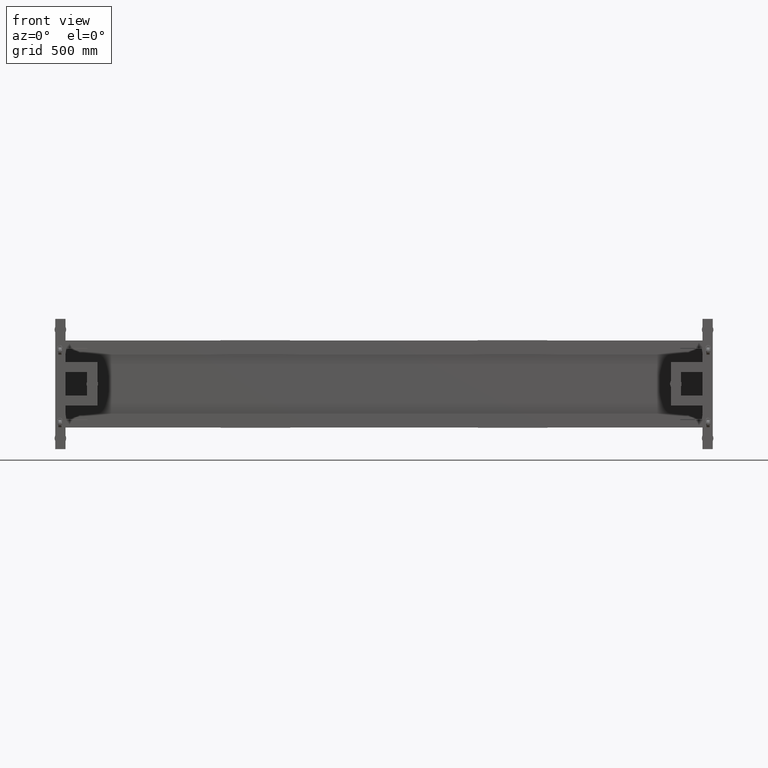
[diagram: clean part render]
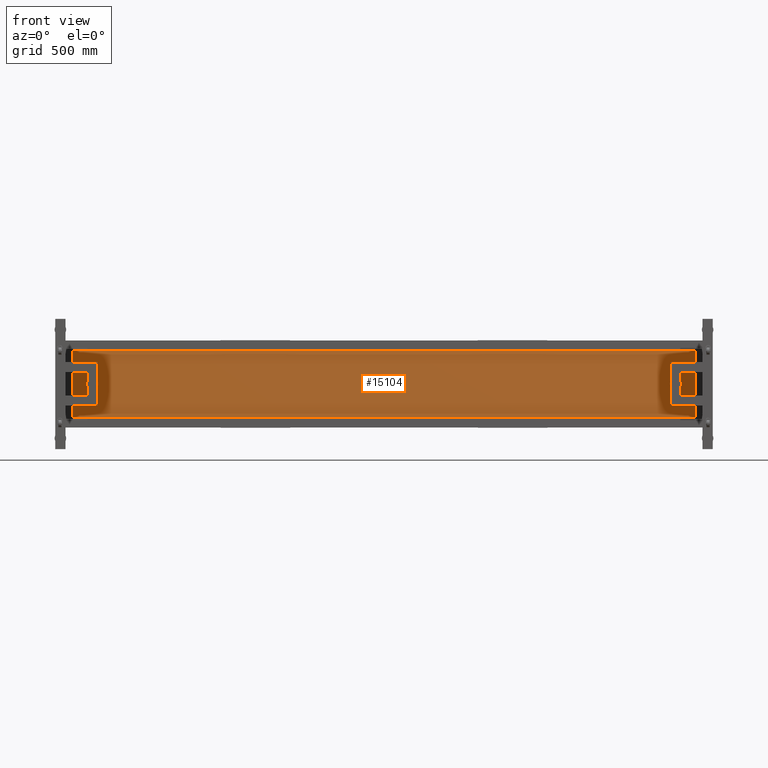
[diagram: same view with one face highlighted and labeled with its STEP entity id]
A machine part, front view. The second image highlights one B-rep face of the part: STEP entity #15104.
In plain terms, the highlighted planar face has unit normal (0, 1, -0).
Its self-contained STEP definition (entity closure, byte-faithful):
#83 = CARTESIAN_POINT ( 'NONE',  ( 3080.317512562816319, 555.4410804020131991, -228.4899999999998954 ) ) ;
#409 = CARTESIAN_POINT ( 'NONE',  ( 3080.317512562816319, 555.4410804020136538, 228.4900000000081093 ) ) ;
#1901 = CARTESIAN_POINT ( 'NONE',  ( -16.66248743718434611, 555.4410804020136538, 228.4900000000001228 ) ) ;
#4736 = CARTESIAN_POINT ( 'NONE',  ( 2380.317512562815409, 555.4410804020129717, -228.4899999999998954 ) ) ;
#6479 = EDGE_CURVE ( 'NONE', #12515, #47104, #36032, .T. ) ;
#7032 = LINE ( 'NONE', #83, #51543 ) ;
#12515 = VERTEX_POINT ( 'NONE', #77593 ) ;
#13775 = DIRECTION ( 'NONE',  ( 1.000000000000000000, -1.092267369640097868E-16, 0.000000000000000000 ) ) ;
#15104 = ADVANCED_FACE ( 'NONE', ( #72034 ), #34391, .F. ) ;
#17421 = DIRECTION ( 'NONE',  ( -1.000000000000000000, 1.092267369640097868E-16, 0.000000000000000000 ) ) ;
#17713 = EDGE_CURVE ( 'NONE', #51446, #26632, #7032, .T. ) ;
#22376 = LINE ( 'NONE', #4736, #57871 ) ;
#26632 = VERTEX_POINT ( 'NONE', #409 ) ;
#34391 = PLANE ( 'NONE',  #47253 ) ;
#36032 = LINE ( 'NONE', #61009, #70049 ) ;
#45976 = VECTOR ( 'NONE', #13775, 1000.000000000000000 ) ;
#47104 = VERTEX_POINT ( 'NONE', #71812 ) ;
#47253 = AXIS2_PLACEMENT_3D ( 'NONE', #47496, #79370, #53223 ) ;
#47496 = CARTESIAN_POINT ( 'NONE',  ( 1181.827512562815627, 555.4410804020133128, 1.110223024625156540E-13 ) ) ;
#48726 = DIRECTION ( 'NONE',  ( 0.000000000000000000, 1.000000000000000472E-15, 1.000000000000000000 ) ) ;
#51446 = VERTEX_POINT ( 'NONE', #61851 ) ;
#51543 = VECTOR ( 'NONE', #68829, 1000.000000000000000 ) ;
#52588 = ORIENTED_EDGE ( 'NONE', *, *, #6479, .F. ) ;
#53223 = DIRECTION ( 'NONE',  ( 1.092267369640097871E-31, 1.000000000000000472E-15, 1.000000000000000000 ) ) ;
#57871 = VECTOR ( 'NONE', #17421, 1000.000000000000000 ) ;
#61009 = CARTESIAN_POINT ( 'NONE',  ( -1216.662487437185973, 555.4410804020124033, -228.4899999999998954 ) ) ;
#61232 = EDGE_CURVE ( 'NONE', #47104, #26632, #64516, .T. ) ;
#61851 = CARTESIAN_POINT ( 'NONE',  ( 3080.317512562816319, 555.4410804020131991, -228.4899999999998954 ) ) ;
#63573 = ORIENTED_EDGE ( 'NONE', *, *, #61232, .F. ) ;
#63683 = EDGE_CURVE ( 'NONE', #51446, #12515, #22376, .T. ) ;
#64516 = LINE ( 'NONE', #1901, #45976 ) ;
#68829 = DIRECTION ( 'NONE',  ( -3.450989802914127535E-31, 1.000000000000000472E-15, 1.000000000000000000 ) ) ;
#69769 = EDGE_LOOP ( 'NONE', ( #73564, #74077, #63573, #52588 ) ) ;
#70049 = VECTOR ( 'NONE', #48726, 1000.000000000000000 ) ;
#71812 = CARTESIAN_POINT ( 'NONE',  ( -1216.662487437185973, 555.4410804020128580, 228.4900000000081093 ) ) ;
#72034 = FACE_OUTER_BOUND ( 'NONE', #69769, .T. ) ;
#73564 = ORIENTED_EDGE ( 'NONE', *, *, #63683, .F. ) ;
#74077 = ORIENTED_EDGE ( 'NONE', *, *, #17713, .T. ) ;
#77593 = CARTESIAN_POINT ( 'NONE',  ( -1216.662487437185973, 555.4410804020124033, -228.4899999999998954 ) ) ;
#79370 = DIRECTION ( 'NONE',  ( 1.092267369640097868E-16, 1.000000000000000000, -1.000000000000000472E-15 ) ) ;